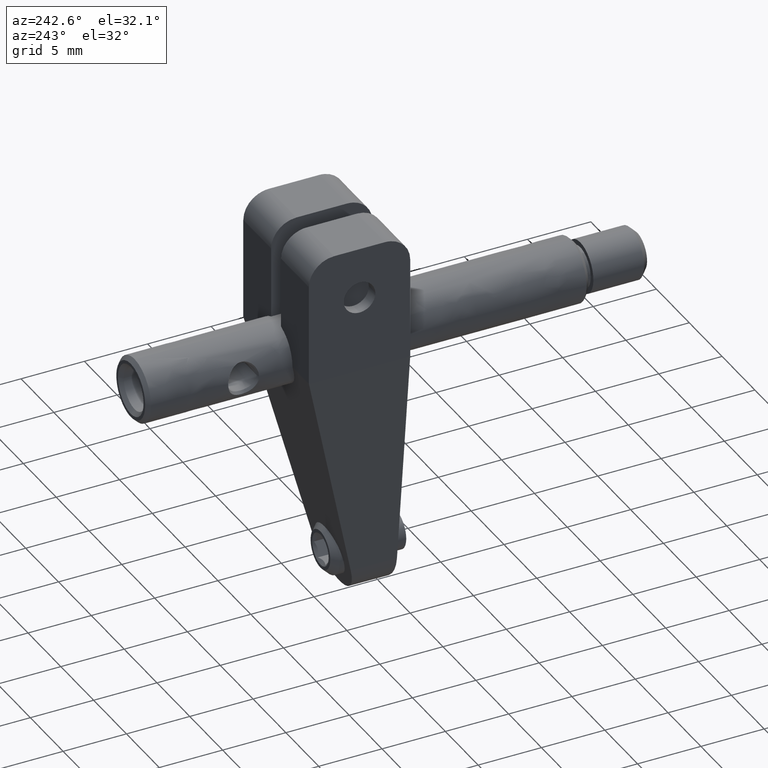
[diagram: clean part render]
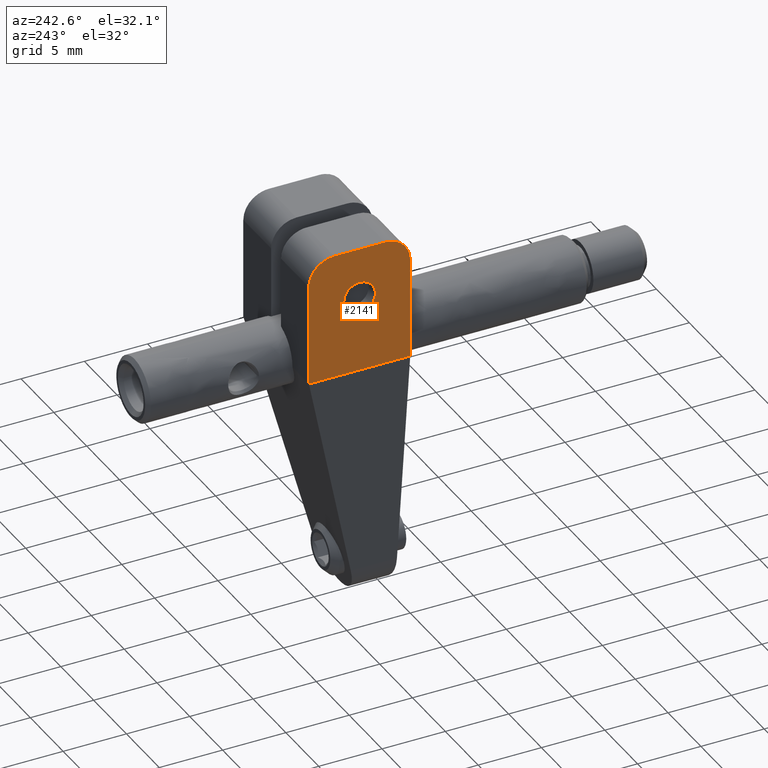
[diagram: same view with one face highlighted and labeled with its STEP entity id]
A machine part, auxiliary view. The second image highlights one B-rep face of the part: STEP entity #2141.
In plain terms, the highlighted face is a freeform B-spline surface patch.
Its self-contained STEP definition (entity closure, byte-faithful):
#101 =( BOUNDED_CURVE ( )  B_SPLINE_CURVE ( 2, ( #5547, #5618, #1772 ),
 .UNSPECIFIED., .F., .F. ) 
 B_SPLINE_CURVE_WITH_KNOTS ( ( 3, 3 ),
 ( 0.000000000000000000, 0.5000000000000000000 ),
 .UNSPECIFIED. ) 
 CURVE ( )  GEOMETRIC_REPRESENTATION_ITEM ( )  RATIONAL_B_SPLINE_CURVE ( ( 0.9999999999999851230, 0.7071067811865534569, 1.000000000000009326 ) ) 
 REPRESENTATION_ITEM ( '' )  );
#121 = EDGE_CURVE ( 'NONE', #6784, #4824, #2645, .T. ) ;
#147 = CARTESIAN_POINT ( 'NONE',  ( -4.999999999999998224, 0.06874895520969624696, 8.527317688610384749 ) ) ;
#220 = CARTESIAN_POINT ( 'NONE',  ( -5.000000000000000000, -2.277420942559972820E-15, 8.127155519109376058 ) ) ;
#257 = CARTESIAN_POINT ( 'NONE',  ( -5.000000000000000000, -1.039205720350479935E-14, 8.000000000000101252 ) ) ;
#263 = CARTESIAN_POINT ( 'NONE',  ( -5.000000000000024869, 5.249999999999992895, 6.000000000000045297 ) ) ;
#381 = VERTEX_POINT ( 'NONE', #2897 ) ;
#473 = CARTESIAN_POINT ( 'NONE',  ( -4.999999999999999112, 5.189206610227397043, 6.385775547591762802 ) ) ;
#569 = EDGE_CURVE ( 'NONE', #6823, #2580, #1197, .T. ) ;
#570 = CARTESIAN_POINT ( 'NONE',  ( -5.000000000000000000, 7.511837103355559542, 9.316594065007137715 ) ) ;
#650 = CARTESIAN_POINT ( 'NONE',  ( -5.000000000000001776, 0.01755292473438908873, 8.314545835831838261 ) ) ;
#660 = EDGE_CURVE ( 'NONE', #5102, #6746, #1291, .T. ) ;
#731 = CARTESIAN_POINT ( 'NONE',  ( -5.000000000000000888, 4.761859699505193610, 4.994100833292587360 ) ) ;
#766 = CARTESIAN_POINT ( 'NONE',  ( -4.999999999999999112, 5.220740628813798523, 5.687649152375002792 ) ) ;
#802 = CARTESIAN_POINT ( 'NONE',  ( -5.000000000000000000, 5.128178938017465605, 5.461137501723967169 ) ) ;
#838 = CARTESIAN_POINT ( 'NONE',  ( -5.000000000000000000, 4.620566453516377514, 4.901278653065092250 ) ) ;
#975 = CARTESIAN_POINT ( 'NONE',  ( -5.000000000000000000, 7.999999999999983125, 8.254338480070899209 ) ) ;
#1012 = CARTESIAN_POINT ( 'NONE',  ( -5.000000000000024869, 5.249999999999992895, 6.000000000000045297 ) ) ;
#1036 = CARTESIAN_POINT ( 'NONE',  ( -5.000000000000002665, 6.706594358119286170, 9.871095708981888706 ) ) ;
#1042 = CARTESIAN_POINT ( 'NONE',  ( -4.999999999999998224, 5.250002247605122463, 6.079463948598489154 ) ) ;
#1050 = EDGE_CURVE ( 'NONE', #1449, #381, #4059, .T. ) ;
#1064 = CARTESIAN_POINT ( 'NONE',  ( -5.000000000000026645, 2.749999999999995115, 6.000000000000088818 ) ) ;
#1116 = CARTESIAN_POINT ( 'NONE',  ( -5.000000000000000000, 4.538862498277097757, 7.128178938014928967 ) ) ;
#1197 = B_SPLINE_CURVE_WITH_KNOTS ( 'NONE', 1,
 ( #4379, #2297 ),
 .UNSPECIFIED., .F., .F.,
 ( 2, 2 ),
 ( 0.000000000000000000, 1.000000000000000000 ),
 .UNSPECIFIED. ) ;
#1232 = B_SPLINE_SURFACE_WITH_KNOTS ( 'NONE', 1, 1, ( 
 ( #2040, #5417 ),
 ( #6521, #5285 ) ),
 .UNSPECIFIED., .F., .F., .F.,
 ( 2, 2 ),
 ( 2, 2 ),
 ( -8.801199999999999690, 0.8012000000000250033 ),
 ( -1.001200000000034063, 11.00120000000000076 ),
 .UNSPECIFIED. ) ;
#1291 = B_SPLINE_CURVE_WITH_KNOTS ( 'NONE', 3,
 ( #5149, #5647, #1375, #3523, #4098, #6718, #6830, #838, #731, #6223, #5110, #3559, #802, #3017, #6793, #766, #2447, #263 ),
 .UNSPECIFIED., .F., .F.,
 ( 4, 1, 1, 2, 2, 2, 1, 1, 2, 2, 4 ),
 ( 0.000000000000000000, 0.06250000000000016653, 0.09375000000000031919, 0.1093750000000004025, 0.1250000000000004718, 0.2499999999999989453, 0.3124999999999983902, 0.3437499999999985567, 0.3593749999999986677, 0.3749999999999987788, 0.5000000000000000000 ),
 .UNSPECIFIED. ) ;
#1375 = CARTESIAN_POINT ( 'NONE',  ( -5.000000000000000888, 4.196586644672152033, 4.760970577959030337 ) ) ;
#1449 = VERTEX_POINT ( 'NONE', #3756 ) ;
#1645 = CARTESIAN_POINT ( 'NONE',  ( -4.999999999999999112, 6.314545835822754860, 9.982447075265683978 ) ) ;
#1672 = EDGE_CURVE ( 'NONE', #3135, #6823, #2002, .T. ) ;
#1772 = CARTESIAN_POINT ( 'NONE',  ( -5.000000000000026645, 2.749999999999995115, 6.000000000000088818 ) ) ;
#1792 = CARTESIAN_POINT ( 'NONE',  ( -5.000000000000000000, 0.6834059349987325893, 9.511837103359974677 ) ) ;
#1827 = CARTESIAN_POINT ( 'NONE',  ( -4.999999999999999112, 0.1179337130591895516, 8.676894829556729860 ) ) ;
#2002 = B_SPLINE_CURVE_WITH_KNOTS ( 'NONE', 1,
 ( #5911, #3205 ),
 .UNSPECIFIED., .F., .F.,
 ( 2, 2 ),
 ( 0.000000000000000000, 1.000000000000000000 ),
 .UNSPECIFIED. ) ;
#2040 = CARTESIAN_POINT ( 'NONE',  ( -5.000000000000000000, -0.8011999999999999122, 11.00120000000011800 ) ) ;
#2048 = CARTESIAN_POINT ( 'NONE',  ( -5.000000000000000000, 2.000000000000000000, 10.00000000000000000 ) ) ;
#2079 = CARTESIAN_POINT ( 'NONE',  ( -5.000000000000000000, 6.000000000000000000, 10.00000000000000000 ) ) ;
#2096 = ORIENTED_EDGE ( 'NONE', *, *, #1050, .T. ) ;
#2110 = CARTESIAN_POINT ( 'NONE',  ( -5.000000000000000000, 8.000000000000000000, 8.000000000000101252 ) ) ;
#2116 = CARTESIAN_POINT ( 'NONE',  ( -5.000000000000000888, 4.724149111347757390, 7.025448268814198372 ) ) ;
#2118 = EDGE_LOOP ( 'NONE', ( #6972, #2693, #3045, #5696 ) ) ;
#2141 = ADVANCED_FACE ( 'NONE', ( #6488, #4814 ), #1232, .T. ) ;
#2177 = CARTESIAN_POINT ( 'NONE',  ( -5.000000000000000888, 7.846686116601902405, 8.768166365106406346 ) ) ;
#2255 = CARTESIAN_POINT ( 'NONE',  ( -5.000000000000000888, 5.239033355349985932, 6.196576708416368540 ) ) ;
#2268 = EDGE_LOOP ( 'NONE', ( #5787, #4340, #3291, #3402, #6503, #2096 ) ) ;
#2291 = CARTESIAN_POINT ( 'NONE',  ( -5.000000000000000888, 0.1020263750186473917, 8.632241069150239809 ) ) ;
#2297 = CARTESIAN_POINT ( 'NONE',  ( -5.000000000000000000, -1.039205720350479935E-14, 8.000000000000101252 ) ) ;
#2443 = CARTESIAN_POINT ( 'NONE',  ( -5.000000000000002665, 0.1340714301036148304, 8.720143744257375928 ) ) ;
#2447 = CARTESIAN_POINT ( 'NONE',  ( -4.999999999999999112, 5.249995504789703560, 5.841072102803152255 ) ) ;
#2580 = VERTEX_POINT ( 'NONE', #6638 ) ;
#2645 =( BOUNDED_CURVE ( )  B_SPLINE_CURVE ( 2, ( #4990, #3164, #3668 ),
 .UNSPECIFIED., .F., .T. ) 
 B_SPLINE_CURVE_WITH_KNOTS ( ( 3, 3 ),
 ( 0.5000000000000000000, 1.000000000000000000 ),
 .UNSPECIFIED. ) 
 CURVE ( )  GEOMETRIC_REPRESENTATION_ITEM ( )  RATIONAL_B_SPLINE_CURVE ( ( 0.9999999999999905631, 0.7071067811865553443, 1.000000000000001998 ) ) 
 REPRESENTATION_ITEM ( '' )  );
#2658 = CARTESIAN_POINT ( 'NONE',  ( -5.000000000000000000, 5.098721346930235043, 6.620566453524819650 ) ) ;
#2690 = CARTESIAN_POINT ( 'NONE',  ( -4.999999999999999112, 5.207034852975671591, 6.329562726147588414 ) ) ;
#2693 = ORIENTED_EDGE ( 'NONE', *, *, #660, .T. ) ;
#2717 = CARTESIAN_POINT ( 'NONE',  ( -4.999999999999997335, 7.953192200708272708, 8.499734953112156433 ) ) ;
#2740 = CARTESIAN_POINT ( 'NONE',  ( -5.000000000000000000, 6.000000000000000000, 10.00000000000000000 ) ) ;
#2753 = CARTESIAN_POINT ( 'NONE',  ( -5.000000000000000888, 7.812540669507431979, 8.846846718122691300 ) ) ;
#2830 = CARTESIAN_POINT ( 'NONE',  ( -5.000000000000000888, 1.249032176749916401, 9.853725627213478333 ) ) ;
#2897 = CARTESIAN_POINT ( 'NONE',  ( -5.000000000000000000, 8.000000000000000000, 8.000000000000101252 ) ) ;
#2904 = CARTESIAN_POINT ( 'NONE',  ( -5.000000000000000000, 1.231833634895055596, 9.846686116603045491 ) ) ;
#3017 = CARTESIAN_POINT ( 'NONE',  ( -5.000000000000000888, 5.145892465228133261, 5.500058635363502368 ) ) ;
#3045 = ORIENTED_EDGE ( 'NONE', *, *, #4864, .T. ) ;
#3135 = VERTEX_POINT ( 'NONE', #6702 ) ;
#3164 = CARTESIAN_POINT ( 'NONE',  ( -5.000000000000050626, 2.750000000000039524, 7.250000000000119904 ) ) ;
#3190 = CARTESIAN_POINT ( 'NONE',  ( -5.000000000000000000, 4.000000000000000000, 4.750000000000079936 ) ) ;
#3191 = CARTESIAN_POINT ( 'NONE',  ( -5.000000000000000888, 6.527317688603550216, 9.931251044790384341 ) ) ;
#3205 = CARTESIAN_POINT ( 'NONE',  ( -5.000000000000060396, 3.021437610359990262E-18, 7.950815931560370451E-16 ) ) ;
#3226 = CARTESIAN_POINT ( 'NONE',  ( -5.000000000000000888, 4.499941364637101593, 7.145892465226756585 ) ) ;
#3252 = CARTESIAN_POINT ( 'NONE',  ( -4.999999999999999112, 6.632241069146219026, 9.897973624981423413 ) ) ;
#3291 = ORIENTED_EDGE ( 'NONE', *, *, #569, .T. ) ;
#3402 = ORIENTED_EDGE ( 'NONE', *, *, #4961, .T. ) ;
#3480 = CARTESIAN_POINT ( 'NONE',  ( -4.999999999999999112, 0.8413735759337859221, 9.640725139069049376 ) ) ;
#3523 = CARTESIAN_POINT ( 'NONE',  ( -5.000000000000000888, 4.329570178339415598, 4.792968097006093942 ) ) ;
#3559 = CARTESIAN_POINT ( 'NONE',  ( -5.000000000000000888, 5.100238031090693624, 5.403657645309322355 ) ) ;
#3668 = CARTESIAN_POINT ( 'NONE',  ( -5.000000000000000000, 4.000000000000000000, 7.250000000000100364 ) ) ;
#3726 = CARTESIAN_POINT ( 'NONE',  ( -5.000000000000024869, 5.249999999999992895, 6.000000000000045297 ) ) ;
#3756 = CARTESIAN_POINT ( 'NONE',  ( -5.000000000000000000, 6.000000000000000000, 10.00000000000000000 ) ) ;
#3758 = CARTESIAN_POINT ( 'NONE',  ( -5.000000000000060396, 3.021437610359990262E-18, 7.950815931560370451E-16 ) ) ;
#3762 = CARTESIAN_POINT ( 'NONE',  ( -5.000000000000001776, 6.676894829554282929, 9.882066286940885291 ) ) ;
#3874 = CARTESIAN_POINT ( 'NONE',  ( -5.000000000000000000, 4.000000000000000000, 7.250000000000100364 ) ) ;
#3942 = EDGE_CURVE ( 'NONE', #381, #3135, #5302, .T. ) ;
#3981 = CARTESIAN_POINT ( 'NONE',  ( -5.000000000000000888, 1.153153281881809988, 9.812540669510834590 ) ) ;
#4059 = B_SPLINE_CURVE_WITH_KNOTS ( 'NONE', 3,
 ( #2079, #5356, #1645, #3191, #3252, #3762, #1036, #5995, #6560, #5896, #570, #4331, #4912, #2753, #4947, #2177, #4233, #2717, #975, #2110 ),
 .UNSPECIFIED., .F., .F.,
 ( 4, 1, 1, 1, 2, 2, 2, 1, 1, 1, 2, 2, 4 ),
 ( 0.000000000000000000, 0.1249999999999987232, 0.1874999999999976685, 0.2187499999999965028, 0.2343749999999960310, 0.2499999999999955591, 0.4999999999999935052, 0.6249999999999922284, 0.6874999999999915623, 0.7187499999999914513, 0.7343749999999905631, 0.7499999999999897859, 1.000000000000000000 ),
 .UNSPECIFIED. ) ;
#4098 = CARTESIAN_POINT ( 'NONE',  ( -4.999999999999999112, 4.385780338286488167, 4.810795286189458508 ) ) ;
#4233 = CARTESIAN_POINT ( 'NONE',  ( -4.999999999999999112, 7.853725627213380633, 8.750967823249546029 ) ) ;
#4303 = CARTESIAN_POINT ( 'NONE',  ( -5.000000000000000888, 4.596342354692319887, 7.100238031086714585 ) ) ;
#4331 = CARTESIAN_POINT ( 'NONE',  ( -5.000000000000000888, 7.640725139061388838, 9.158626424076432571 ) ) ;
#4340 = ORIENTED_EDGE ( 'NONE', *, *, #1672, .T. ) ;
#4373 = CARTESIAN_POINT ( 'NONE',  ( -5.000000000000000000, 4.312339490438271028, 7.220745125442737056 ) ) ;
#4379 = CARTESIAN_POINT ( 'NONE',  ( -5.000000000000060396, 3.021437610359990262E-18, 7.950815931560370451E-16 ) ) ;
#4410 = CARTESIAN_POINT ( 'NONE',  ( -5.000000000000000888, 4.478590749016591488, 7.154921657688771752 ) ) ;
#4487 = CARTESIAN_POINT ( 'NONE',  ( -5.000000000000000888, 1.500265046897327093, 9.953192200708372184 ) ) ;
#4523 = CARTESIAN_POINT ( 'NONE',  ( -4.999999999999998224, 0.1289042910181841251, 8.706594358120609556 ) ) ;
#4637 = CARTESIAN_POINT ( 'NONE',  ( -5.000000000000000888, 0.2420548822193341332, 8.992920216986936666 ) ) ;
#4755 = VERTEX_POINT ( 'NONE', #2048 ) ;
#4814 = FACE_OUTER_BOUND ( 'NONE', #2268, .T. ) ;
#4824 = VERTEX_POINT ( 'NONE', #5967 ) ;
#4853 = CARTESIAN_POINT ( 'NONE',  ( -5.000000000000000000, 5.005899166704971037, 6.761859699511415300 ) ) ;
#4864 = EDGE_CURVE ( 'NONE', #6746, #4824, #6050, .T. ) ;
#4912 = CARTESIAN_POINT ( 'NONE',  ( -5.000000000000000888, 7.760386781457718541, 8.954138651947747718 ) ) ;
#4947 = CARTESIAN_POINT ( 'NONE',  ( -4.999999999999999112, 7.833247278711215067, 8.799782736248943138 ) ) ;
#4961 = EDGE_CURVE ( 'NONE', #2580, #4755, #6214, .T. ) ;
#4990 = CARTESIAN_POINT ( 'NONE',  ( -5.000000000000026645, 2.749999999999995115, 6.000000000000088818 ) ) ;
#5102 = VERTEX_POINT ( 'NONE', #3190 ) ;
#5110 = CARTESIAN_POINT ( 'NONE',  ( -4.999999999999999112, 5.025448268819523889, 5.275850888654415982 ) ) ;
#5149 = CARTESIAN_POINT ( 'NONE',  ( -5.000000000000000000, 4.000000000000000000, 4.750000000000079936 ) ) ;
#5285 = CARTESIAN_POINT ( 'NONE',  ( -5.000000000000000000, 8.801199999999999690, -1.001200000000012080 ) ) ;
#5302 = B_SPLINE_CURVE_WITH_KNOTS ( 'NONE', 1,
 ( #6990, #5952 ),
 .UNSPECIFIED., .F., .F.,
 ( 2, 2 ),
 ( 0.000000000000000000, 1.000000000000000000 ),
 .UNSPECIFIED. ) ;
#5356 = CARTESIAN_POINT ( 'NONE',  ( -4.999999999999999112, 6.127155519104157122, 10.00000000000008171 ) ) ;
#5394 = CARTESIAN_POINT ( 'NONE',  ( -5.000000000000000000, 5.176406759756645215, 6.423077164964563934 ) ) ;
#5417 = CARTESIAN_POINT ( 'NONE',  ( -5.000000000000000000, -0.8011999999999999122, -1.001200000000012080 ) ) ;
#5460 = CARTESIAN_POINT ( 'NONE',  ( -5.000000000000000888, 4.158966694787491036, 7.250000000000055955 ) ) ;
#5547 = CARTESIAN_POINT ( 'NONE',  ( -5.000000000000000000, 4.000000000000000000, 4.750000000000079936 ) ) ;
#5618 = CARTESIAN_POINT ( 'NONE',  ( -5.000000000000048850, 2.749999999999925393, 4.750000000000162537 ) ) ;
#5647 = CARTESIAN_POINT ( 'NONE',  ( -5.000000000000000000, 4.079469626458913645, 4.750000000000034639 ) ) ;
#5665 = EDGE_CURVE ( 'NONE', #5102, #6784, #101, .T. ) ;
#5679 = CARTESIAN_POINT ( 'NONE',  ( -5.000000000000000000, 1.745661519938579653, 10.00000000000007816 ) ) ;
#5696 = ORIENTED_EDGE ( 'NONE', *, *, #121, .F. ) ;
#5787 = ORIENTED_EDGE ( 'NONE', *, *, #3942, .T. ) ;
#5896 = CARTESIAN_POINT ( 'NONE',  ( -4.999999999999999112, 7.218966480408125719, 9.609452557105269577 ) ) ;
#5911 = CARTESIAN_POINT ( 'NONE',  ( -5.000000000000060396, 8.000000000000000000, 0.000000000000000000 ) ) ;
#5952 = CARTESIAN_POINT ( 'NONE',  ( -5.000000000000060396, 8.000000000000000000, 0.000000000000000000 ) ) ;
#5967 = CARTESIAN_POINT ( 'NONE',  ( -5.000000000000000000, 4.000000000000000000, 7.250000000000100364 ) ) ;
#5995 = CARTESIAN_POINT ( 'NONE',  ( -5.000000000000000888, 6.720143744258059826, 9.865928569895881850 ) ) ;
#6020 = EDGE_CURVE ( 'NONE', #4755, #1449, #7099, .T. ) ;
#6050 = B_SPLINE_CURVE_WITH_KNOTS ( 'NONE', 3,
 ( #1012, #1042, #2255, #2690, #473, #5394, #6568, #2658, #4853, #7037, #2116, #4303, #1116, #3226, #4410, #4373, #5460, #3874 ),
 .UNSPECIFIED., .F., .F.,
 ( 4, 1, 1, 2, 2, 2, 1, 1, 2, 2, 4 ),
 ( 0.5000000000000000000, 0.5625000000000018874, 0.5937500000000033307, 0.6093750000000038858, 0.6250000000000044409, 0.7500000000000049960, 0.8125000000000051070, 0.8437500000000048850, 0.8593750000000048850, 0.8750000000000047740, 1.000000000000000000 ),
 .UNSPECIFIED. ) ;
#6108 = CARTESIAN_POINT ( 'NONE',  ( -5.000000000000001776, 1.200217263753792230, 9.833247278713301398 ) ) ;
#6178 = CARTESIAN_POINT ( 'NONE',  ( -5.000000000000000000, 2.000000000000000000, 10.00000000000000000 ) ) ;
#6214 = B_SPLINE_CURVE_WITH_KNOTS ( 'NONE', 3,
 ( #257, #220, #650, #147, #2291, #1827, #4523, #2443, #4637, #6713, #1792, #3480, #6826, #3981, #6108, #2904, #2830, #4487, #5679, #6178 ),
 .UNSPECIFIED., .F., .F.,
 ( 4, 1, 1, 1, 2, 2, 2, 1, 1, 1, 2, 2, 4 ),
 ( 0.000000000000000000, 0.1249999999999980016, 0.1874999999999970024, 0.2187499999999973355, 0.2343749999999975020, 0.2499999999999976685, 0.4999999999999972244, 0.6249999999999964473, 0.6874999999999960032, 0.7187499999999957812, 0.7343749999999960032, 0.7499999999999962252, 1.000000000000000000 ),
 .UNSPECIFIED. ) ;
#6223 = CARTESIAN_POINT ( 'NONE',  ( -5.000000000000000888, 4.944895364972173191, 5.177124368628967410 ) ) ;
#6488 = FACE_BOUND ( 'NONE', #2118, .T. ) ;
#6503 = ORIENTED_EDGE ( 'NONE', *, *, #6020, .T. ) ;
#6521 = CARTESIAN_POINT ( 'NONE',  ( -5.000000000000000000, 8.801199999999999690, 11.00120000000011800 ) ) ;
#6560 = CARTESIAN_POINT ( 'NONE',  ( -5.000000000000000000, 6.992920216974626513, 9.757945117789997624 ) ) ;
#6568 = CARTESIAN_POINT ( 'NONE',  ( -4.999999999999999112, 5.170174630002760452, 6.440062378630834417 ) ) ;
#6583 = CARTESIAN_POINT ( 'NONE',  ( -5.000000000000000000, 2.000000000000000000, 10.00000000000000000 ) ) ;
#6638 = CARTESIAN_POINT ( 'NONE',  ( -5.000000000000000000, -1.039205720350479935E-14, 8.000000000000101252 ) ) ;
#6702 = CARTESIAN_POINT ( 'NONE',  ( -5.000000000000060396, 8.000000000000000000, 0.000000000000000000 ) ) ;
#6713 = CARTESIAN_POINT ( 'NONE',  ( -4.999999999999998224, 0.3905474428831933742, 9.218966480399572561 ) ) ;
#6718 = CARTESIAN_POINT ( 'NONE',  ( -5.000000000000001776, 4.423079826461606245, 4.823594293808285194 ) ) ;
#6746 = VERTEX_POINT ( 'NONE', #3726 ) ;
#6784 = VERTEX_POINT ( 'NONE', #1064 ) ;
#6793 = CARTESIAN_POINT ( 'NONE',  ( -5.000000000000000888, 5.154922219767315461, 5.521410670631783368 ) ) ;
#6823 = VERTEX_POINT ( 'NONE', #3758 ) ;
#6826 = CARTESIAN_POINT ( 'NONE',  ( -4.999999999999999112, 1.045861348059929252, 9.760386781463488148 ) ) ;
#6830 = CARTESIAN_POINT ( 'NONE',  ( -5.000000000000000000, 4.440062378631826512, 4.829825369997846174 ) ) ;
#6972 = ORIENTED_EDGE ( 'NONE', *, *, #5665, .F. ) ;
#6990 = CARTESIAN_POINT ( 'NONE',  ( -5.000000000000000000, 8.000000000000000000, 8.000000000000101252 ) ) ;
#7037 = CARTESIAN_POINT ( 'NONE',  ( -4.999999999999999112, 4.822875631372284033, 6.944895364969156049 ) ) ;
#7099 = B_SPLINE_CURVE_WITH_KNOTS ( 'NONE', 1,
 ( #6583, #2740 ),
 .UNSPECIFIED., .F., .F.,
 ( 2, 2 ),
 ( 0.000000000000000000, 1.000000000000000000 ),
 .UNSPECIFIED. ) ;